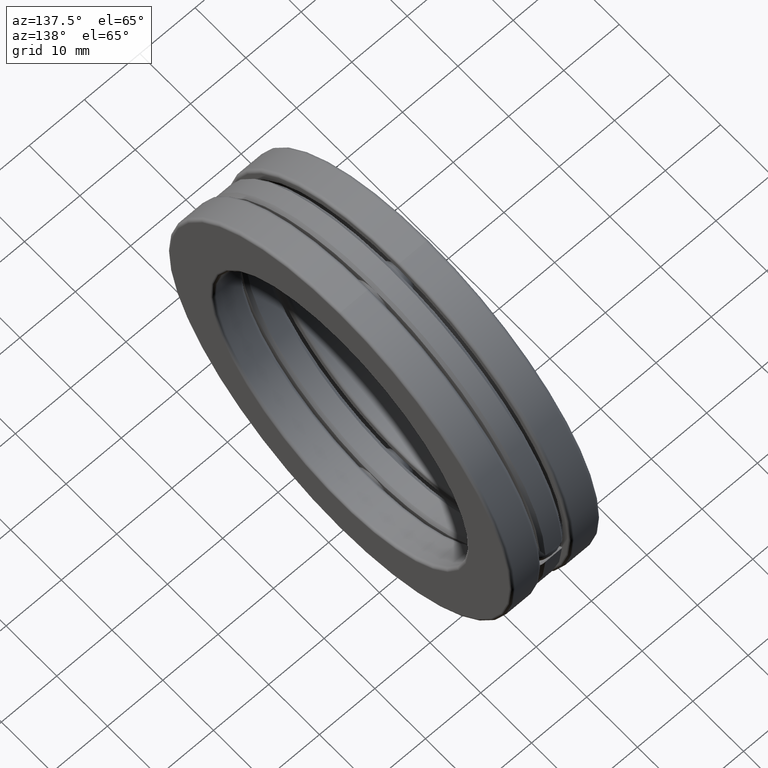
[diagram: clean part render]
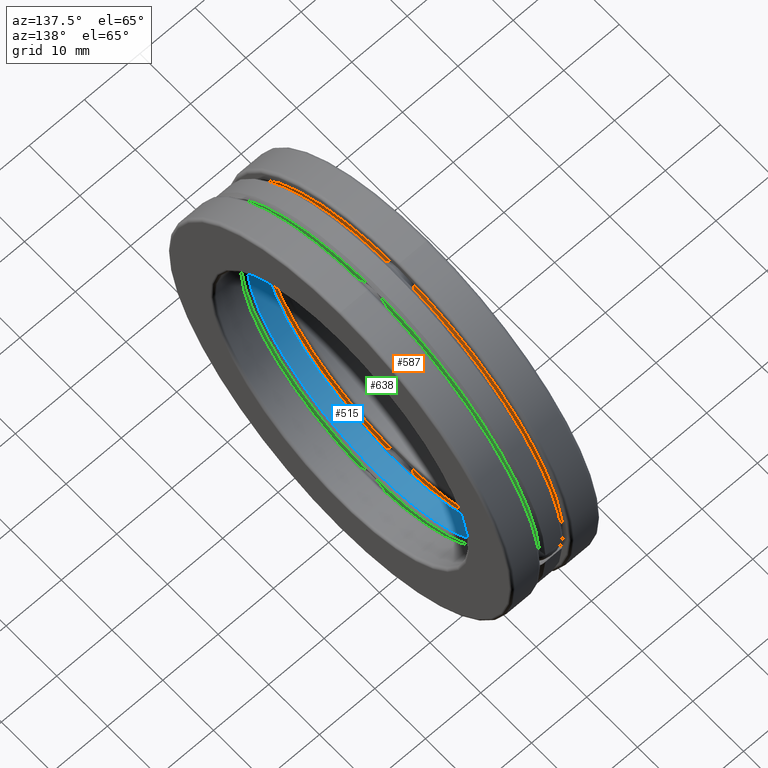
[diagram: same view with three faces highlighted in distinct colors, each labeled with its STEP entity id]
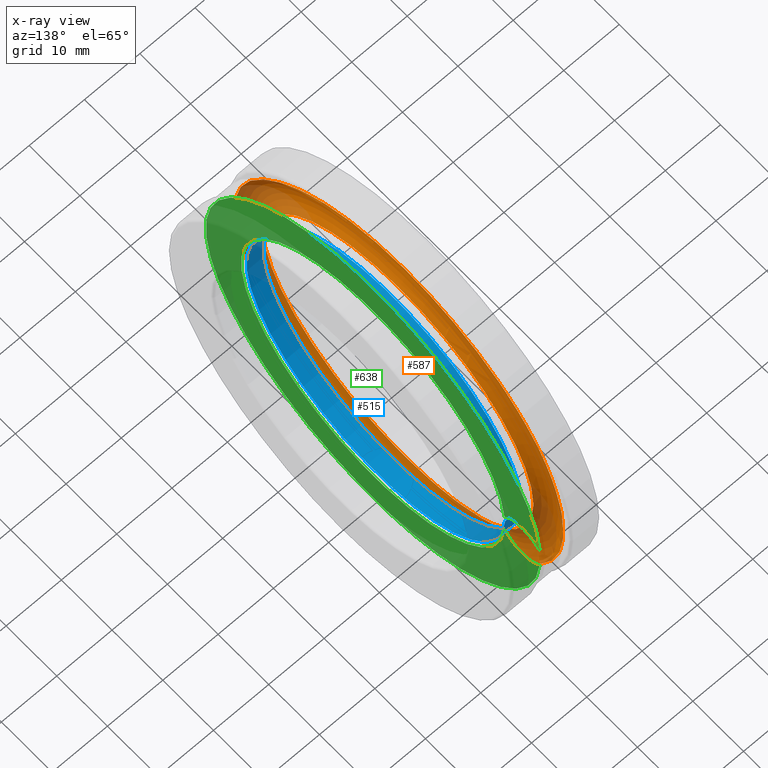
[diagram: x-ray of the same camera — body ghosted, the three highlighted faces saturated]
A machine part, auxiliary view with three faces highlighted in distinct colors.
The next image is the same camera in x-ray (body ghosted, the three faces saturated) — at least one of them is partly hidden behind the body in this view.
Their STEP definitions:

[orange] entity #587 — the highlighted toroidal blend (fillet) surface has major radius 29.5021 mm and minor (blend) radius 3.9624 mm.
#29 = DIRECTION ( 'NONE',  ( -1.000000000000000000, -0.0000000000000000000, -0.0000000000000000000 ) ) ;
#108 = EDGE_CURVE ( 'NONE', #299, #299, #191, .T. ) ;
#144 = ORIENTED_EDGE ( 'NONE', *, *, #803, .T. ) ;
#171 = DIRECTION ( 'NONE',  ( -1.000000000000000000, -0.0000000000000000000, -0.0000000000000000000 ) ) ;
#175 = DIRECTION ( 'NONE',  ( 0.0000000000000000000, 0.0000000000000000000, 1.000000000000000000 ) ) ;
#191 = CIRCLE ( 'NONE', #645, 1.276871395915928800 ) ;
#252 = CARTESIAN_POINT ( 'NONE',  ( -0.1050020999999998800, 0.0000000000000000000, 1.276871395915928800 ) ) ;
#280 = EDGE_LOOP ( 'NONE', ( #144 ) ) ;
#299 = VERTEX_POINT ( 'NONE', #252 ) ;
#323 = CIRCLE ( 'NONE', #663, 1.046128604084071200 ) ;
#354 = CARTESIAN_POINT ( 'NONE',  ( -0.1050020999999998800, 0.0000000000000000000, 0.0000000000000000000 ) ) ;
#364 = AXIS2_PLACEMENT_3D ( 'NONE', #575, #834, #634 ) ;
#419 = DIRECTION ( 'NONE',  ( 0.0000000000000000000, 0.0000000000000000000, 1.000000000000000000 ) ) ;
#469 = TOROIDAL_SURFACE ( 'NONE', #364, 1.161500000000000000, 0.1560000000000000000 ) ;
#545 = CARTESIAN_POINT ( 'NONE',  ( -0.1050020999999998800, 0.0000000000000000000, 0.0000000000000000000 ) ) ;
#552 = FACE_OUTER_BOUND ( 'NONE', #280, .T. ) ;
#575 = CARTESIAN_POINT ( 'NONE',  ( 7.112136286048253700E-017, 0.0000000000000000000, 0.0000000000000000000 ) ) ;
#587 = ADVANCED_FACE ( 'NONE', ( #552, #690 ), #469, .F. ) ;
#634 = DIRECTION ( 'NONE',  ( 0.0000000000000000000, 0.0000000000000000000, 1.000000000000000000 ) ) ;
#645 = AXIS2_PLACEMENT_3D ( 'NONE', #354, #29, #419 ) ;
#651 = VERTEX_POINT ( 'NONE', #820 ) ;
#663 = AXIS2_PLACEMENT_3D ( 'NONE', #545, #171, #175 ) ;
#690 = FACE_OUTER_BOUND ( 'NONE', #695, .T. ) ;
#695 = EDGE_LOOP ( 'NONE', ( #788 ) ) ;
#788 = ORIENTED_EDGE ( 'NONE', *, *, #108, .F. ) ;
#803 = EDGE_CURVE ( 'NONE', #651, #651, #323, .T. ) ;
#820 = CARTESIAN_POINT ( 'NONE',  ( -0.1050020999999998800, 0.0000000000000000000, 1.046128604084071200 ) ) ;
#834 = DIRECTION ( 'NONE',  ( -1.000000000000000000, -0.0000000000000000000, -0.0000000000000000000 ) ) ;

[blue] entity #515 — the highlighted cylindrical surface (partial cylindrical patch) has radius 25.5143 mm, axis along (-1, -0, -0).
#55 = DIRECTION ( 'NONE',  ( 0.0000000000000000000, 0.0000000000000000000, 1.000000000000000000 ) ) ;
#64 = EDGE_CURVE ( 'NONE', #415, #195, #507, .T. ) ;
#78 = EDGE_CURVE ( 'NONE', #503, #195, #648, .T. ) ;
#84 = CARTESIAN_POINT ( 'NONE',  ( 1.707404996040164500E-017, 1.003952432199741700, 0.03316268807293931000 ) ) ;
#89 = CIRCLE ( 'NONE', #819, 1.004499999999999900 ) ;
#126 = CARTESIAN_POINT ( 'NONE',  ( -0.05874999999999998300, 1.003952432199741700, 0.03316268807293931000 ) ) ;
#145 = VECTOR ( 'NONE', #525, 39.37007874015748100 ) ;
#195 = VERTEX_POINT ( 'NONE', #126 ) ;
#223 = AXIS2_PLACEMENT_3D ( 'NONE', #647, #350, #714 ) ;
#253 = FACE_OUTER_BOUND ( 'NONE', #743, .T. ) ;
#289 = ORIENTED_EDGE ( 'NONE', *, *, #745, .F. ) ;
#291 = CARTESIAN_POINT ( 'NONE',  ( 0.05875000000000001100, 0.0000000000000000000, 0.0000000000000000000 ) ) ;
#313 = CARTESIAN_POINT ( 'NONE',  ( 0.05875000000000001100, 1.003952432199741700, 0.03316268807293924100 ) ) ;
#317 = AXIS2_PLACEMENT_3D ( 'NONE', #688, #824, #55 ) ;
#320 = ORIENTED_EDGE ( 'NONE', *, *, #78, .F. ) ;
#350 = DIRECTION ( 'NONE',  ( -1.000000000000000000, -0.0000000000000000000, -0.0000000000000000000 ) ) ;
#361 = DIRECTION ( 'NONE',  ( 0.0000000000000000000, 0.0000000000000000000, 1.000000000000000000 ) ) ;
#415 = VERTEX_POINT ( 'NONE', #604 ) ;
#426 = VERTEX_POINT ( 'NONE', #811 ) ;
#439 = ORIENTED_EDGE ( 'NONE', *, *, #456, .F. ) ;
#456 = EDGE_CURVE ( 'NONE', #426, #503, #89, .T. ) ;
#458 = ORIENTED_EDGE ( 'NONE', *, *, #64, .T. ) ;
#466 = VECTOR ( 'NONE', #522, 39.37007874015748100 ) ;
#503 = VERTEX_POINT ( 'NONE', #313 ) ;
#507 = CIRCLE ( 'NONE', #223, 1.004499999999999900 ) ;
#510 = LINE ( 'NONE', #777, #145 ) ;
#515 = ADVANCED_FACE ( 'NONE', ( #253 ), #818, .F. ) ;
#522 = DIRECTION ( 'NONE',  ( -1.000000000000000000, -0.0000000000000000000, -0.0000000000000000000 ) ) ;
#525 = DIRECTION ( 'NONE',  ( 1.000000000000000000, 0.0000000000000000000, 0.0000000000000000000 ) ) ;
#604 = CARTESIAN_POINT ( 'NONE',  ( -0.05874999999999998300, 1.003952432199741700, -0.03316268807293931000 ) ) ;
#647 = CARTESIAN_POINT ( 'NONE',  ( -0.05874999999999998300, 0.0000000000000000000, 0.0000000000000000000 ) ) ;
#648 = LINE ( 'NONE', #84, #466 ) ;
#688 = CARTESIAN_POINT ( 'NONE',  ( 0.0000000000000000000, 0.0000000000000000000, 0.0000000000000000000 ) ) ;
#714 = DIRECTION ( 'NONE',  ( 0.0000000000000000000, 0.0000000000000000000, 1.000000000000000000 ) ) ;
#732 = DIRECTION ( 'NONE',  ( -1.000000000000000000, -0.0000000000000000000, -0.0000000000000000000 ) ) ;
#743 = EDGE_LOOP ( 'NONE', ( #439, #289, #458, #320 ) ) ;
#745 = EDGE_CURVE ( 'NONE', #415, #426, #510, .T. ) ;
#777 = CARTESIAN_POINT ( 'NONE',  ( 1.707404996040164500E-017, 1.003952432199741700, -0.03316268807293931000 ) ) ;
#811 = CARTESIAN_POINT ( 'NONE',  ( 0.05875000000000001100, 1.003952432199741700, -0.03316268807293933800 ) ) ;
#818 = CYLINDRICAL_SURFACE ( 'NONE', #317, 1.004499999999999900 ) ;
#819 = AXIS2_PLACEMENT_3D ( 'NONE', #291, #732, #361 ) ;
#824 = DIRECTION ( 'NONE',  ( -1.000000000000000000, -0.0000000000000000000, -0.0000000000000000000 ) ) ;

[green] entity #638 — the highlighted planar face has unit normal (1, 0, 0).
#5 = CIRCLE ( 'NONE', #414, 1.298499999999999800 ) ;
#15 = ORIENTED_EDGE ( 'NONE', *, *, #514, .F. ) ;
#17 = DIRECTION ( 'NONE',  ( -1.000000000000000000, -0.0000000000000000000, -0.0000000000000000000 ) ) ;
#19 = EDGE_CURVE ( 'NONE', #168, #630, #649, .T. ) ;
#20 = DIRECTION ( 'NONE',  ( 0.0000000000000000000, 0.0000000000000000000, 1.000000000000000000 ) ) ;
#35 = ORIENTED_EDGE ( 'NONE', *, *, #682, .F. ) ;
#80 = DIRECTION ( 'NONE',  ( -1.000000000000000000, -0.0000000000000000000, -0.0000000000000000000 ) ) ;
#88 = CARTESIAN_POINT ( 'NONE',  ( 0.07875000000000000100, 0.0000000000000000000, 0.0000000000000000000 ) ) ;
#90 = ORIENTED_EDGE ( 'NONE', *, *, #445, .F. ) ;
#121 = AXIS2_PLACEMENT_3D ( 'NONE', #174, #674, #164 ) ;
#127 = EDGE_LOOP ( 'NONE', ( #15, #719, #90, #35 ) ) ;
#158 = VERTEX_POINT ( 'NONE', #353 ) ;
#164 = DIRECTION ( 'NONE',  ( 0.0000000000000000000, 0.0000000000000000000, -1.000000000000000000 ) ) ;
#168 = VERTEX_POINT ( 'NONE', #471 ) ;
#174 = CARTESIAN_POINT ( 'NONE',  ( 0.07875000000000000100, 1.161500000000000000, 0.0000000000000000000 ) ) ;
#198 = AXIS2_PLACEMENT_3D ( 'NONE', #88, #17, #20 ) ;
#202 = DIRECTION ( 'NONE',  ( 0.0000000000000000000, 0.0000000000000000000, -1.000000000000000000 ) ) ;
#257 = PLANE ( 'NONE',  #734 ) ;
#305 = DIRECTION ( 'NONE',  ( 1.000000000000000000, -0.0000000000000000000, 0.0000000000000000000 ) ) ;
#353 = CARTESIAN_POINT ( 'NONE',  ( 0.07875000000000000100, 1.295421222557038100, -0.08936501635891165600 ) ) ;
#381 = DIRECTION ( 'NONE',  ( 0.0000000000000000000, 0.0000000000000000000, -1.000000000000000000 ) ) ;
#414 = AXIS2_PLACEMENT_3D ( 'NONE', #705, #80, #782 ) ;
#445 = EDGE_CURVE ( 'NONE', #490, #630, #761, .T. ) ;
#446 = CARTESIAN_POINT ( 'NONE',  ( 0.07875000000000000100, 4.907231512341723100E-018, 0.0000000000000000000 ) ) ;
#471 = CARTESIAN_POINT ( 'NONE',  ( 0.07875000000000000100, 1.021421222557038500, -0.07936583717245769600 ) ) ;
#490 = VERTEX_POINT ( 'NONE', #556 ) ;
#495 = CARTESIAN_POINT ( 'NONE',  ( 0.07875000000000000100, 1.161500000000000000, 0.0000000000000000000 ) ) ;
#514 = EDGE_CURVE ( 'NONE', #168, #158, #687, .T. ) ;
#556 = CARTESIAN_POINT ( 'NONE',  ( 0.07875000000000000100, 1.295421222557038100, 0.08936501635891165600 ) ) ;
#630 = VERTEX_POINT ( 'NONE', #763 ) ;
#638 = ADVANCED_FACE ( 'NONE', ( #669 ), #257, .T. ) ;
#649 = CIRCLE ( 'NONE', #198, 1.024500000000000200 ) ;
#669 = FACE_OUTER_BOUND ( 'NONE', #127, .T. ) ;
#674 = DIRECTION ( 'NONE',  ( 1.000000000000000000, -0.0000000000000000000, 0.0000000000000000000 ) ) ;
#682 = EDGE_CURVE ( 'NONE', #158, #490, #5, .T. ) ;
#687 = CIRCLE ( 'NONE', #756, 0.1610000000000000000 ) ;
#705 = CARTESIAN_POINT ( 'NONE',  ( 0.07874999999999997300, 0.0000000000000000000, 0.0000000000000000000 ) ) ;
#719 = ORIENTED_EDGE ( 'NONE', *, *, #19, .T. ) ;
#734 = AXIS2_PLACEMENT_3D ( 'NONE', #446, #767, #202 ) ;
#756 = AXIS2_PLACEMENT_3D ( 'NONE', #495, #305, #381 ) ;
#761 = CIRCLE ( 'NONE', #121, 0.1610000000000000000 ) ;
#763 = CARTESIAN_POINT ( 'NONE',  ( 0.07875000000000000100, 1.021421222557038500, 0.07936583717245769600 ) ) ;
#767 = DIRECTION ( 'NONE',  ( 1.000000000000000000, 0.0000000000000000000, 0.0000000000000000000 ) ) ;
#782 = DIRECTION ( 'NONE',  ( 0.0000000000000000000, 0.0000000000000000000, 1.000000000000000000 ) ) ;